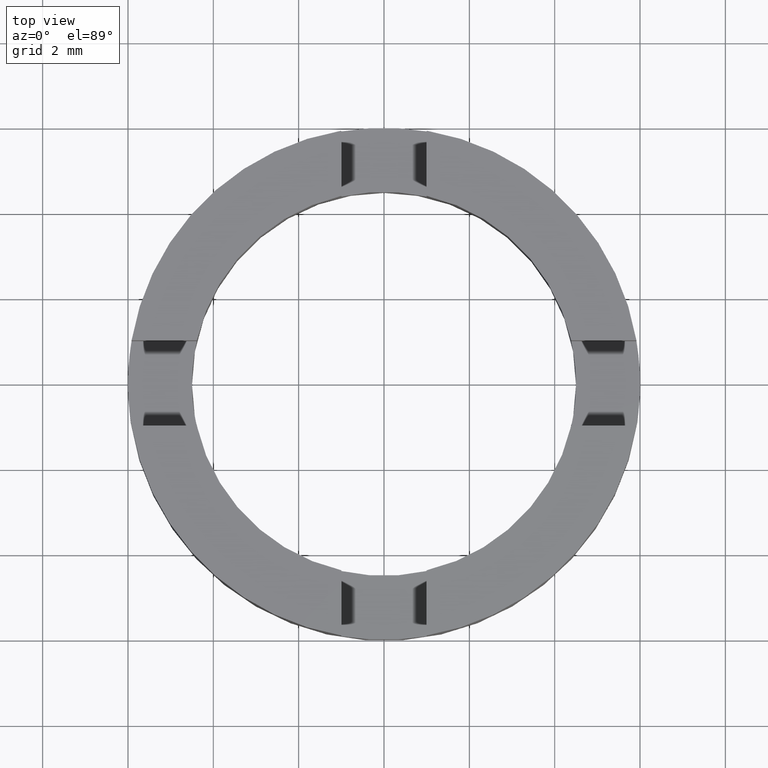
[diagram: clean part render]
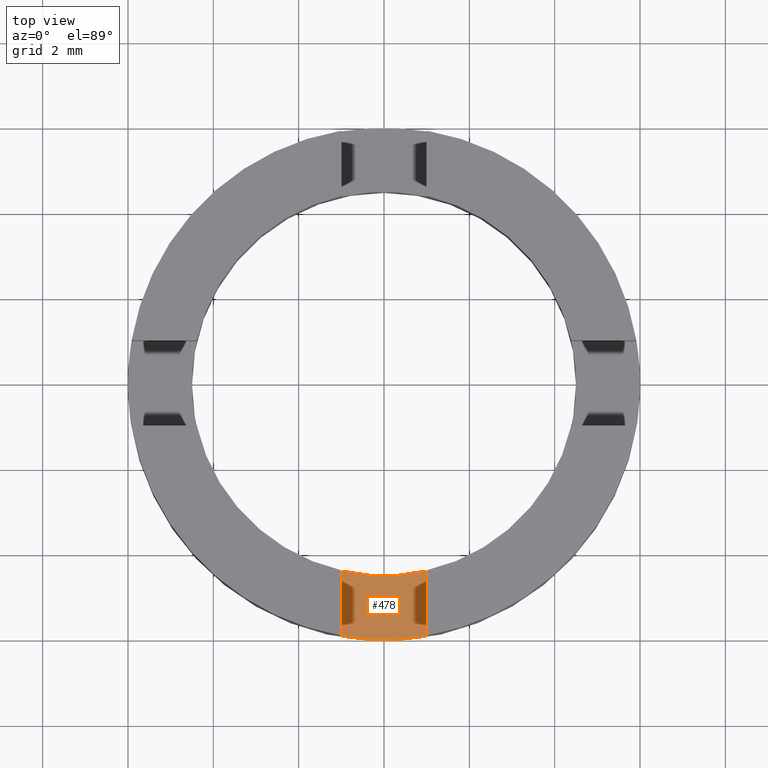
[diagram: same view with one face highlighted and labeled with its STEP entity id]
A machine part, top view. The second image highlights one B-rep face of the part: STEP entity #478.
In plain terms, the highlighted planar face has unit normal (-0, 0, 1).
Its self-contained STEP definition (entity closure, byte-faithful):
#18 = EDGE_CURVE ( 'NONE', #371, #618, #764, .T. ) ;
#27 = CARTESIAN_POINT ( 'NONE',  ( 0.000000000000000000, 0.000000000000000000, 1.500000000000000000 ) ) ;
#39 = DIRECTION ( 'NONE',  ( 0.000000000000000000, 1.000000000000000000, -0.000000000000000000 ) ) ;
#46 = CARTESIAN_POINT ( 'NONE',  ( -0.9999999999999986677, -4.387482193696060406, 1.500000000000000000 ) ) ;
#53 = DIRECTION ( 'NONE',  ( 0.000000000000000000, 1.000000000000000000, -0.000000000000000000 ) ) ;
#70 = CIRCLE ( 'NONE', #244, 6.000000000000000888 ) ;
#119 = ORIENTED_EDGE ( 'NONE', *, *, #428, .T. ) ;
#126 = ORIENTED_EDGE ( 'NONE', *, *, #682, .T. ) ;
#169 = DIRECTION ( 'NONE',  ( 1.000000000000000000, 0.000000000000000000, 0.000000000000000000 ) ) ;
#178 = PLANE ( 'NONE',  #692 ) ;
#234 = DIRECTION ( 'NONE',  ( -0.000000000000000000, 0.000000000000000000, 1.000000000000000000 ) ) ;
#244 = AXIS2_PLACEMENT_3D ( 'NONE', #339, #595, #277 ) ;
#249 = VECTOR ( 'NONE', #53, 1000.000000000000000 ) ;
#266 = VECTOR ( 'NONE', #39, 1000.000000000000000 ) ;
#277 = DIRECTION ( 'NONE',  ( 1.000000000000000000, 0.000000000000000000, 0.000000000000000000 ) ) ;
#311 = CARTESIAN_POINT ( 'NONE',  ( 0.000000000000000000, 0.000000000000000000, 1.500000000000000000 ) ) ;
#339 = CARTESIAN_POINT ( 'NONE',  ( 0.000000000000000000, 0.000000000000000000, 1.500000000000000000 ) ) ;
#341 = FACE_OUTER_BOUND ( 'NONE', #653, .T. ) ;
#371 = VERTEX_POINT ( 'NONE', #676 ) ;
#428 = EDGE_CURVE ( 'NONE', #546, #568, #545, .T. ) ;
#429 = EDGE_CURVE ( 'NONE', #371, #546, #70, .T. ) ;
#475 = DIRECTION ( 'NONE',  ( 0.000000000000000000, -0.000000000000000000, -1.000000000000000000 ) ) ;
#478 = ADVANCED_FACE ( 'NONE', ( #341 ), #178, .T. ) ;
#487 = CARTESIAN_POINT ( 'NONE',  ( 1.000000000000001332, -5.916079783099617018, 1.500000000000000000 ) ) ;
#544 = AXIS2_PLACEMENT_3D ( 'NONE', #311, #475, #169 ) ;
#545 = LINE ( 'NONE', #589, #266 ) ;
#546 = VERTEX_POINT ( 'NONE', #487 ) ;
#568 = VERTEX_POINT ( 'NONE', #591 ) ;
#589 = CARTESIAN_POINT ( 'NONE',  ( 1.000000000000001332, 0.000000000000000000, 1.500000000000000000 ) ) ;
#591 = CARTESIAN_POINT ( 'NONE',  ( 1.000000000000001332, -4.387482193696059518, 1.500000000000000000 ) ) ;
#595 = DIRECTION ( 'NONE',  ( -0.000000000000000000, 0.000000000000000000, 1.000000000000000000 ) ) ;
#618 = VERTEX_POINT ( 'NONE', #46 ) ;
#620 = CIRCLE ( 'NONE', #544, 4.500000000000000000 ) ;
#633 = ORIENTED_EDGE ( 'NONE', *, *, #429, .T. ) ;
#653 = EDGE_LOOP ( 'NONE', ( #658, #633, #119, #126 ) ) ;
#658 = ORIENTED_EDGE ( 'NONE', *, *, #18, .F. ) ;
#676 = CARTESIAN_POINT ( 'NONE',  ( -0.9999999999999986677, -5.916079783099617906, 1.500000000000000000 ) ) ;
#682 = EDGE_CURVE ( 'NONE', #568, #618, #620, .T. ) ;
#692 = AXIS2_PLACEMENT_3D ( 'NONE', #27, #234, #704 ) ;
#704 = DIRECTION ( 'NONE',  ( 1.000000000000000000, 0.000000000000000000, 0.000000000000000000 ) ) ;
#708 = CARTESIAN_POINT ( 'NONE',  ( -0.9999999999999986677, 0.000000000000000000, 1.500000000000000000 ) ) ;
#764 = LINE ( 'NONE', #708, #249 ) ;